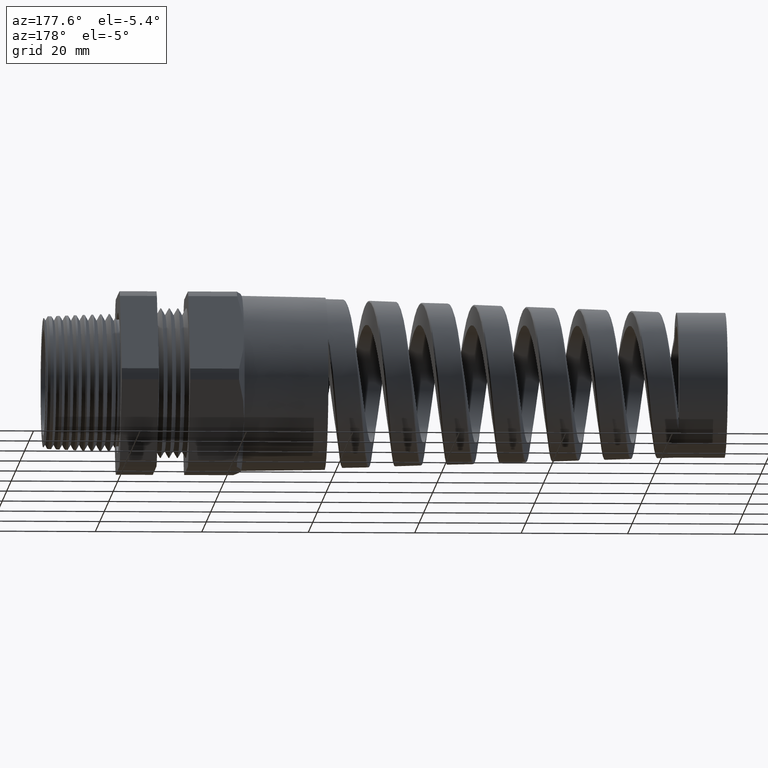
[diagram: clean part render]
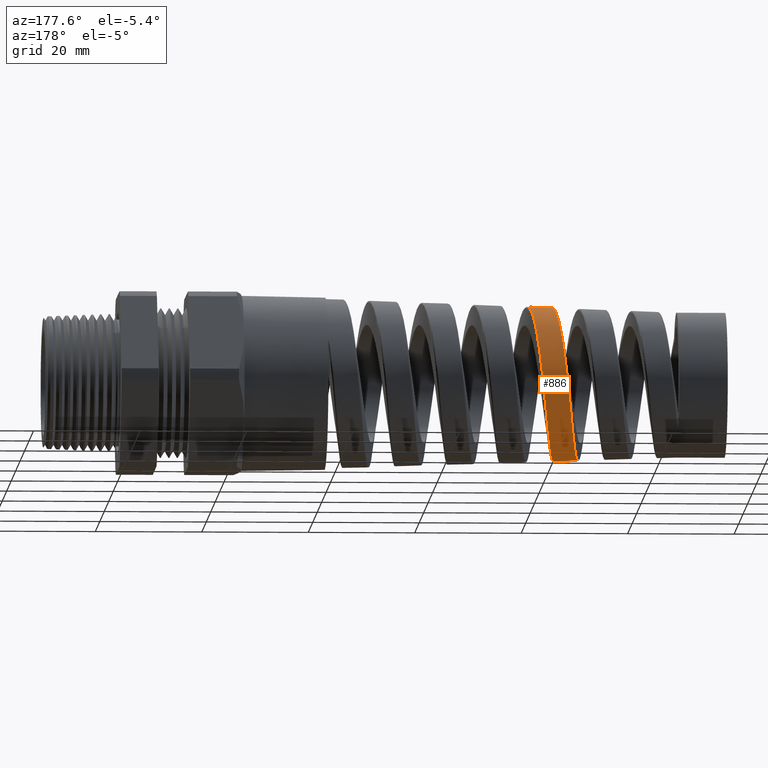
[diagram: same view with one face highlighted and labeled with its STEP entity id]
A machine part, auxiliary view. The second image highlights one B-rep face of the part: STEP entity #886.
In plain terms, the highlighted conical surface has half-angle 2.001 deg.
Its self-contained STEP definition (entity closure, byte-faithful):
#734 = EDGE_CURVE ( 'NONE', #741, #736, #2139, .T. ) ;
#736 = VERTEX_POINT ( 'NONE', #2224 ) ;
#741 = VERTEX_POINT ( 'NONE', #2221 ) ;
#742 = ORIENTED_EDGE ( 'NONE', *, *, #734, .T. ) ;
#856 = VERTEX_POINT ( 'NONE', #2298 ) ;
#870 = ORIENTED_EDGE ( 'NONE', *, *, #896, .T. ) ;
#876 = EDGE_CURVE ( 'NONE', #856, #741, #2292, .T. ) ;
#886 = ADVANCED_FACE ( 'NONE', ( #2358 ), #2357, .T. ) ;
#892 = EDGE_LOOP ( 'NONE', ( #870, #903, #742, #9129 ) ) ;
#896 = EDGE_CURVE ( 'NONE', #900, #856, #2351, .T. ) ;
#900 = VERTEX_POINT ( 'NONE', #2352 ) ;
#903 = ORIENTED_EDGE ( 'NONE', *, *, #876, .T. ) ;
#2102 = CARTESIAN_POINT ( 'NONE',  ( -3.164951244766895900, 0.4309390384435671200, -0.3755663455538650900 ) ) ;
#2103 = CARTESIAN_POINT ( 'NONE',  ( -3.160888456375702000, 0.4548097515973057400, -0.3465094612117067300 ) ) ;
#2104 = CARTESIAN_POINT ( 'NONE',  ( -3.158838647625257200, 0.4661318495734781400, -0.3312446775651154400 ) ) ;
#2105 = CARTESIAN_POINT ( 'NONE',  ( -3.152753579262339100, 0.4974277249819171700, -0.2843753137674665500 ) ) ;
#2106 = CARTESIAN_POINT ( 'NONE',  ( -3.148742563903803100, 0.5150047478625769900, -0.2514438762746186200 ) ) ;
#2107 = CARTESIAN_POINT ( 'NONE',  ( -3.142679721816575600, 0.5364898849013763900, -0.1995584420496329100 ) ) ;
#2108 = CARTESIAN_POINT ( 'NONE',  ( -3.140646241972763400, 0.5428468420940110200, -0.1817975908040157000 ) ) ;
#2109 = CARTESIAN_POINT ( 'NONE',  ( -3.136568921478766200, 0.5537973523327908200, -0.1456178376899887900 ) ) ;
#2110 = CARTESIAN_POINT ( 'NONE',  ( -3.134547112133000600, 0.5583353717546222200, -0.1274002939921472200 ) ) ;
#2111 = CARTESIAN_POINT ( 'NONE',  ( -3.128499822684435800, 0.5692282250481555100, -0.07238035467602899100 ) ) ;
#2112 = CARTESIAN_POINT ( 'NONE',  ( -3.124491959275025100, 0.5728871600442940700, -0.03521410526141304000 ) ) ;
#2113 = CARTESIAN_POINT ( 'NONE',  ( -3.118403499079687200, 0.5728592436107867700, 0.02126746204319381100 ) ) ;
#2114 = CARTESIAN_POINT ( 'NONE',  ( -3.116360103432857600, 0.5719097557459288400, 0.04023325140239347000 ) ) ;
#2115 = CARTESIAN_POINT ( 'NONE',  ( -3.112318266864333900, 0.5681925747535888600, 0.07757903153202477800 ) ) ;
#2116 = CARTESIAN_POINT ( 'NONE',  ( -3.108298389147072300, 0.5626646790653762100, 0.1145498010533424600 ) ) ;
#2117 = CARTESIAN_POINT ( 'NONE',  ( -3.104281484871348300, 0.5535772383503776400, 0.1507789236810061800 ) ) ;
#2118 = CARTESIAN_POINT ( 'NONE',  ( -3.100247120860836400, 0.5426901185590163900, 0.1866309793902579400 ) ) ;
#2119 = CARTESIAN_POINT ( 'NONE',  ( -3.098212071459315100, 0.5363133592929169000, 0.2044466610536106700 ) ) ;
#2120 = CARTESIAN_POINT ( 'NONE',  ( -3.092118614827133800, 0.5146131774385509500, 0.2567421734206176100 ) ) ;
#2121 = CARTESIAN_POINT ( 'NONE',  ( -3.088120495478225100, 0.4969510906951917200, 0.2896791869020963200 ) ) ;
#2122 = CARTESIAN_POINT ( 'NONE',  ( -3.082095453082168500, 0.4658212437118729500, 0.3362736319681361400 ) ) ;
#2123 = CARTESIAN_POINT ( 'NONE',  ( -3.080082703808829000, 0.4546663142787648000, 0.3513332847059891200 ) ) ;
#2124 = CARTESIAN_POINT ( 'NONE',  ( -3.076029279621916000, 0.4307585987595331500, 0.3804815522892294700 ) ) ;
#2125 = CARTESIAN_POINT ( 'NONE',  ( -3.073992992271031200, 0.4180225504857959500, 0.3945304761863807100 ) ) ;
#2126 = CARTESIAN_POINT ( 'NONE',  ( -3.067949526730485000, 0.3782501008810836800, 0.4343054601549991600 ) ) ;
#2127 = CARTESIAN_POINT ( 'NONE',  ( -3.063962245049440400, 0.3494131141340979200, 0.4580007788648204900 ) ) ;
#2128 = CARTESIAN_POINT ( 'NONE',  ( -3.057923190027775000, 0.3026882676854018600, 0.4893078705726262600 ) ) ;
#2129 = CARTESIAN_POINT ( 'NONE',  ( -3.055889797459646000, 0.2864412684120759600, 0.4990785490400400600 ) ) ;
#2130 = CARTESIAN_POINT ( 'NONE',  ( -3.051841656391815600, 0.2532093967913008300, 0.5168903892331857500 ) ) ;
#2131 = CARTESIAN_POINT ( 'NONE',  ( -3.049832319204414300, 0.2362730870096623500, 0.5249190398801024700 ) ) ;
#2132 = CARTESIAN_POINT ( 'NONE',  ( -3.043820880377277500, 0.1845320403201204100, 0.5464443055061623000 ) ) ;
#2133 = CARTESIAN_POINT ( 'NONE',  ( -3.039833935745759300, 0.1488040423210336100, 0.5574041666139977200 ) ) ;
#2134 = CARTESIAN_POINT ( 'NONE',  ( -3.033764408690136100, 0.09331854096497703400, 0.5686034193708051600 ) ) ;
#2135 = CARTESIAN_POINT ( 'NONE',  ( -3.031736628647685900, 0.07459815711078948700, 0.5714280464776710900 ) ) ;
#2136 = CARTESIAN_POINT ( 'NONE',  ( -3.027719031759100100, 0.03731316059525729300, 0.5752080574698870100 ) ) ;
#2137 = CARTESIAN_POINT ( 'NONE',  ( -3.025720102970262300, 0.01866089223286508300, 0.5761822028384541200 ) ) ;
#2138 = CARTESIAN_POINT ( 'NONE',  ( -3.023721414793606200, -5.325336358131926600E-017, 0.5762520198718080700 ) ) ;
#2139 = B_SPLINE_CURVE_WITH_KNOTS ( 'NONE', 3,
 ( #2138, #2137, #2136, #2135, #2134, #2133, #2132, #2131, #2130, #2129, #2128, #2127, #2126, #2125, #2124, #2123, #2122, #2121, #2120, #2119, #2118, #2117, #2116, #2115, #2114, #2113, #2112, #2111, #2110, #2109, #2108, #2107, #2106, #2105, #2104, #2103, #2102, #2184, #2183, #2182, #2181, #2180, #2179, #2178, #2177, #2176, #2175, #2174, #2173 ),
 .UNSPECIFIED., .F., .F.,
 ( 4, 2, 2, 2, 2, 2, 2, 2, 2, 2, 2, 1, 2, 2, 2, 2, 2, 2, 2, 2, 2, 2, 2, 2, 4 ),
 ( 0.3725928997030039700, 0.3740332332107925700, 0.3754735667185812300, 0.3783542337341584400, 0.3797945672419470500, 0.3812349007497357100, 0.3841155677653129200, 0.3855559012731015800, 0.3869962347808901800, 0.3898769017964674500, 0.3913172353042560500, 0.3927575688120447100, 0.3941979023198333200, 0.3956382358276219800, 0.3985189028431992400, 0.3999592363509878500, 0.4013995698587764500, 0.4042802368743537700, 0.4057205703821423800, 0.4071609038899309800, 0.4100415709055082500, 0.4129222379210855100, 0.4143625714288741700, 0.4158029049366627800, 0.4186835719522400400 ),
 .UNSPECIFIED. ) ;
#2173 = CARTESIAN_POINT ( 'NONE',  ( -3.217672389097505600, 5.855254468472044600E-013, -0.5694770352593080400 ) ) ;
#2174 = CARTESIAN_POINT ( 'NONE',  ( -3.213611421648249000, 0.03745440747120890700, -0.5696188906538060000 ) ) ;
#2175 = CARTESIAN_POINT ( 'NONE',  ( -3.209584132670992400, 0.07461356778938076100, -0.5660997149498068200 ) ) ;
#2176 = CARTESIAN_POINT ( 'NONE',  ( -3.203483968086340700, 0.1298943634484925900, -0.5552916443704148900 ) ) ;
#2177 = CARTESIAN_POINT ( 'NONE',  ( -3.201429331010417800, 0.1483386484271073900, -0.5507269792776655600 ) ) ;
#2178 = CARTESIAN_POINT ( 'NONE',  ( -3.197355729333363400, 0.1843678212516702600, -0.5398845413314168300 ) ) ;
#2179 = CARTESIAN_POINT ( 'NONE',  ( -3.195331638432514300, 0.2020014769426311300, -0.5336079452426305500 ) ) ;
#2180 = CARTESIAN_POINT ( 'NONE',  ( -3.189267830581185700, 0.2537832123216418000, -0.5122726252755444000 ) ) ;
#2181 = CARTESIAN_POINT ( 'NONE',  ( -3.185238809785445400, 0.2868231670197440900, -0.4947326164447205000 ) ) ;
#2182 = CARTESIAN_POINT ( 'NONE',  ( -3.177054531000075100, 0.3498056356714828700, -0.4527584914959091300 ) ) ;
#2183 = CARTESIAN_POINT ( 'NONE',  ( -3.173026237305824000, 0.3787386946331254300, -0.4289912326858549300 ) ) ;
#2184 = CARTESIAN_POINT ( 'NONE',  ( -3.166971710166985900, 0.4183605741914147000, -0.3894190855859078200 ) ) ;
#2221 = CARTESIAN_POINT ( 'NONE',  ( -3.023721414793606200, -5.325336358131926600E-017, 0.5762520198718080700 ) ) ;
#2224 = CARTESIAN_POINT ( 'NONE',  ( -3.217672389097505600, 5.855254468472044600E-013, -0.5694770352593080400 ) ) ;
#2292 = LINE ( 'NONE', #2361, #2360 ) ;
#2298 = CARTESIAN_POINT ( 'NONE',  ( -3.205119639863304800, 4.712413887958218000E-014, 0.5699155207230265400 ) ) ;
#2324 = CARTESIAN_POINT ( 'NONE',  ( -3.297716178433823100, 0.5665011454637978200, 0.04005651452509877100 ) ) ;
#2325 = CARTESIAN_POINT ( 'NONE',  ( -3.305870612741891500, 0.5665637822591124100, -0.03479655535670758000 ) ) ;
#2326 = CARTESIAN_POINT ( 'NONE',  ( -3.309881342958382000, 0.5629217425102101000, -0.07161269479914220100 ) ) ;
#2327 = CARTESIAN_POINT ( 'NONE',  ( -3.315920912081025100, 0.5521648117979505200, -0.1259439792354437000 ) ) ;
#2328 = CARTESIAN_POINT ( 'NONE',  ( -3.317937733965420600, 0.5476904224387050300, -0.1439045356575332800 ) ) ;
#2329 = CARTESIAN_POINT ( 'NONE',  ( -3.321997053742408800, 0.5369231649458773300, -0.1795169666297568900 ) ) ;
#2330 = CARTESIAN_POINT ( 'NONE',  ( -3.324044865075107300, 0.5306009448340101000, -0.1972140626896731800 ) ) ;
#2331 = CARTESIAN_POINT ( 'NONE',  ( -3.330122944220819100, 0.5092906770018622600, -0.2486931579365651800 ) ) ;
#2332 = CARTESIAN_POINT ( 'NONE',  ( -3.334131454569492000, 0.4918912236800065400, -0.2812505023734955300 ) ) ;
#2333 = CARTESIAN_POINT ( 'NONE',  ( -3.340198801416125900, 0.4610477340887553200, -0.3274531019834549500 ) ) ;
#2334 = CARTESIAN_POINT ( 'NONE',  ( -3.342237093460589400, 0.4499297648122216300, -0.3424608021427634200 ) ) ;
#2335 = CARTESIAN_POINT ( 'NONE',  ( -3.346319555022758200, 0.4262195962538460300, -0.3713379720258663800 ) ) ;
#2336 = CARTESIAN_POINT ( 'NONE',  ( -3.348344555562448000, 0.4137420723301098400, -0.3850783225801467400 ) ) ;
#2337 = CARTESIAN_POINT ( 'NONE',  ( -3.354403216497681100, 0.3745019641439795200, -0.4242666404935807000 ) ) ;
#2338 = CARTESIAN_POINT ( 'NONE',  ( -3.358420869516428400, 0.3459488158074964800, -0.4477009312433292100 ) ) ;
#2339 = CARTESIAN_POINT ( 'NONE',  ( -3.364534546660654400, 0.2994527016359306800, -0.4787092826606605400 ) ) ;
#2340 = CARTESIAN_POINT ( 'NONE',  ( -3.366585937201410400, 0.2833394068231796000, -0.4883333296281864300 ) ) ;
#2341 = CARTESIAN_POINT ( 'NONE',  ( -3.370644766568522400, 0.2505894794269739000, -0.5057623814514277100 ) ) ;
#2342 = CARTESIAN_POINT ( 'NONE',  ( -3.372663784458862900, 0.2338671646610351600, -0.5136280163433442100 ) ) ;
#2343 = CARTESIAN_POINT ( 'NONE',  ( -3.376702094131892400, 0.1997402425460516900, -0.5276858036876479500 ) ) ;
#2344 = CARTESIAN_POINT ( 'NONE',  ( -3.378721341966209700, 0.1823356292523527800, -0.5338779543608298500 ) ) ;
#2345 = CARTESIAN_POINT ( 'NONE',  ( -3.382780271178639000, 0.1468368088841592900, -0.5445649943595743900 ) ) ;
#2346 = CARTESIAN_POINT ( 'NONE',  ( -3.384830642528602300, 0.1286463000006765100, -0.5490770605189843100 ) ) ;
#2347 = CARTESIAN_POINT ( 'NONE',  ( -3.390959962101372000, 0.07374380995280449500, -0.5598207303704425500 ) ) ;
#2348 = CARTESIAN_POINT ( 'NONE',  ( -3.394987718643662800, 0.03695748124247008600, -0.5632831574840215800 ) ) ;
#2349 = CARTESIAN_POINT ( 'NONE',  ( -3.399037625171145800, 3.776891785986905700E-014, -0.5631416884632870500 ) ) ;
#2351 = B_SPLINE_CURVE_WITH_KNOTS ( 'NONE', 3,
 ( #2349, #2348, #2347, #2346, #2345, #2344, #2343, #2342, #2341, #2340, #2339, #2338, #2337, #2336, #2335, #2334, #2333, #2332, #2331, #2330, #2329, #2328, #2327, #2326, #2325, #2324, #2398, #2397, #2396, #2395, #2394, #2393, #2392, #2391, #2390, #2389, #2388, #2387, #2386, #2385, #2384, #2383, #2382, #2381, #2380, #2379, #2378, #2377, #2376, #2375 ),
 .UNSPECIFIED., .F., .F.,
 ( 4, 2, 2, 2, 2, 2, 2, 2, 2, 2, 2, 2, 2, 2, 2, 2, 2, 2, 2, 2, 2, 2, 2, 2, 4 ),
 ( 0.1674795053325793800, 0.1703353555581478600, 0.1717632806709321100, 0.1731912057837163600, 0.1746191308965005800, 0.1760470560092848300, 0.1789029062348533000, 0.1803308313476375500, 0.1817587564604218100, 0.1846146066859902800, 0.1860425317987745300, 0.1874704569115587800, 0.1903263071371272500, 0.1931821573626957300, 0.1946100824754799500, 0.1960380075882642000, 0.1988938578138326800, 0.2003217829266169300, 0.2017497080394011800, 0.2046055582649696800, 0.2060334833777539000, 0.2074614084905381800, 0.2088893336033224000, 0.2103172587161066500, 0.2131731089416751500 ),
 .UNSPECIFIED. ) ;
#2352 = CARTESIAN_POINT ( 'NONE',  ( -3.399037625171145800, 3.776891785986905700E-014, -0.5631416884632870500 ) ) ;
#2353 = DIRECTION ( 'NONE',  ( 0.0000000000000000000, 0.0000000000000000000, -1.000000000000000000 ) ) ;
#2354 = DIRECTION ( 'NONE',  ( 1.000000000000000000, 0.0000000000000000000, 0.0000000000000000000 ) ) ;
#2355 = CARTESIAN_POINT ( 'NONE',  ( -0.9125000000000002000, 0.0000000000000000000, 0.0000000000000000000 ) ) ;
#2356 = AXIS2_PLACEMENT_3D ( 'NONE', #2355, #2354, #2353 ) ;
#2357 = CONICAL_SURFACE ( 'NONE', #2356, 0.6499999999999998000, 0.03491723117042443800 ) ;
#2358 = FACE_OUTER_BOUND ( 'NONE', #892, .T. ) ;
#2359 = DIRECTION ( 'NONE',  ( 0.9993904554178625300, 4.275258673359075800E-018, 0.03491013634572578300 ) ) ;
#2360 = VECTOR ( 'NONE', #2359, 39.37007874015748900 ) ;
#2361 = CARTESIAN_POINT ( 'NONE',  ( -0.9125000000000002000, 7.960204194457793000E-017, 0.6499999999999998000 ) ) ;
#2375 = CARTESIAN_POINT ( 'NONE',  ( -3.205119639863304800, 4.712413887958218000E-014, 0.5699155207230265400 ) ) ;
#2376 = CARTESIAN_POINT ( 'NONE',  ( -3.209121449495603500, 0.03693645153633191800, 0.5697757317955467500 ) ) ;
#2377 = CARTESIAN_POINT ( 'NONE',  ( -3.213107139891620000, 0.07372351493715237300, 0.5660797660145658900 ) ) ;
#2378 = CARTESIAN_POINT ( 'NONE',  ( -3.219179529828053900, 0.1286591722987811000, 0.5550134044509407200 ) ) ;
#2379 = CARTESIAN_POINT ( 'NONE',  ( -3.221202398391685300, 0.1467707974257750600, 0.5504225554372704800 ) ) ;
#2380 = CARTESIAN_POINT ( 'NONE',  ( -3.225219065870597500, 0.1821905420330146000, 0.5395864276477317900 ) ) ;
#2381 = CARTESIAN_POINT ( 'NONE',  ( -3.227220079803845700, 0.1995643155624750900, 0.5333282796437272000 ) ) ;
#2382 = CARTESIAN_POINT ( 'NONE',  ( -3.231225049400261500, 0.2336445949138506700, 0.5191492532806395400 ) ) ;
#2383 = CARTESIAN_POINT ( 'NONE',  ( -3.233228544928713700, 0.2503511646117109200, 0.5112283994650002100 ) ) ;
#2384 = CARTESIAN_POINT ( 'NONE',  ( -3.237256745447666200, 0.2830830099164479100, 0.4936943397743046600 ) ) ;
#2385 = CARTESIAN_POINT ( 'NONE',  ( -3.239292563166804100, 0.2991893288502671100, 0.4840212765096956700 ) ) ;
#2386 = CARTESIAN_POINT ( 'NONE',  ( -3.245351859200015500, 0.3455777681058408400, 0.4529516585565747700 ) ) ;
#2387 = CARTESIAN_POINT ( 'NONE',  ( -3.249344475172361700, 0.3740989295060806500, 0.4294917595516746200 ) ) ;
#2388 = CARTESIAN_POINT ( 'NONE',  ( -3.255372342970201500, 0.4133303242364840800, 0.3902639540564372100 ) ) ;
#2389 = CARTESIAN_POINT ( 'NONE',  ( -3.257387388583748300, 0.4258116977358684700, 0.3765103097949097400 ) ) ;
#2390 = CARTESIAN_POINT ( 'NONE',  ( -3.261450363986613300, 0.4495405065476801900, 0.3476028129162417300 ) ) ;
#2391 = CARTESIAN_POINT ( 'NONE',  ( -3.263473047230288900, 0.4606365749273277900, 0.3326274390338038200 ) ) ;
#2392 = CARTESIAN_POINT ( 'NONE',  ( -3.269508973193101300, 0.4914860240568855700, 0.2864558490661305300 ) ) ;
#2393 = CARTESIAN_POINT ( 'NONE',  ( -3.273506913638278200, 0.5089167866401759200, 0.2539119935777872100 ) ) ;
#2394 = CARTESIAN_POINT ( 'NONE',  ( -3.279571637491387500, 0.5302957916894135400, 0.2024295812843674400 ) ) ;
#2395 = CARTESIAN_POINT ( 'NONE',  ( -3.281613720374953100, 0.5366406284119507000, 0.1847367646944075800 ) ) ;
#2396 = CARTESIAN_POINT ( 'NONE',  ( -3.285659432381915000, 0.5474509232634168200, 0.1491576828412269100 ) ) ;
#2397 = CARTESIAN_POINT ( 'NONE',  ( -3.287670700261308800, 0.5519511368423590800, 0.1312093006156038500 ) ) ;
#2398 = CARTESIAN_POINT ( 'NONE',  ( -3.293699992736749400, 0.5627927888851910200, 0.07690070707349654100 ) ) ;
#9129 = ORIENTED_EDGE ( 'NONE', *, *, #9190, .F. ) ;
#9190 = EDGE_CURVE ( 'NONE', #900, #736, #12563, .T. ) ;
#12553 = DIRECTION ( 'NONE',  ( 0.9993904554178625300, 0.0000000000000000000, -0.03491013634572578300 ) ) ;
#12554 = VECTOR ( 'NONE', #12553, 39.37007874015748900 ) ;
#12555 = CARTESIAN_POINT ( 'NONE',  ( -0.9125000000000002000, 0.0000000000000000000, -0.6499999999999998000 ) ) ;
#12563 = LINE ( 'NONE', #12555, #12554 ) ;